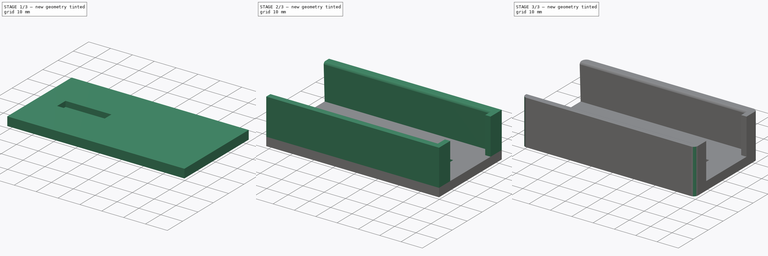
[diagram: build sequence overview — one tinted view per stage of 3, left to right]
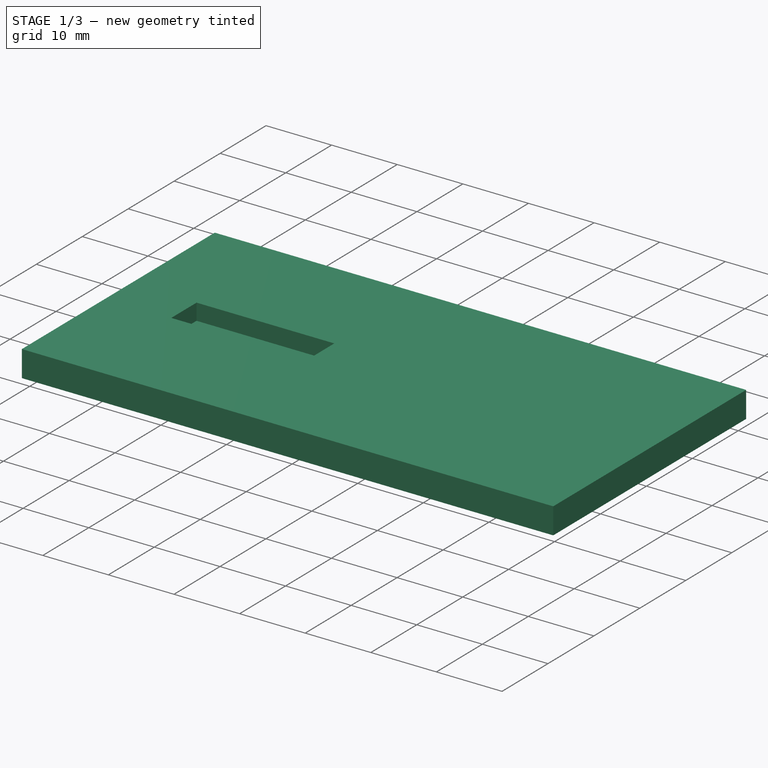
[diagram: stage 1 of 3 — iso view after this stage's code; geometry added in this stage tinted green]
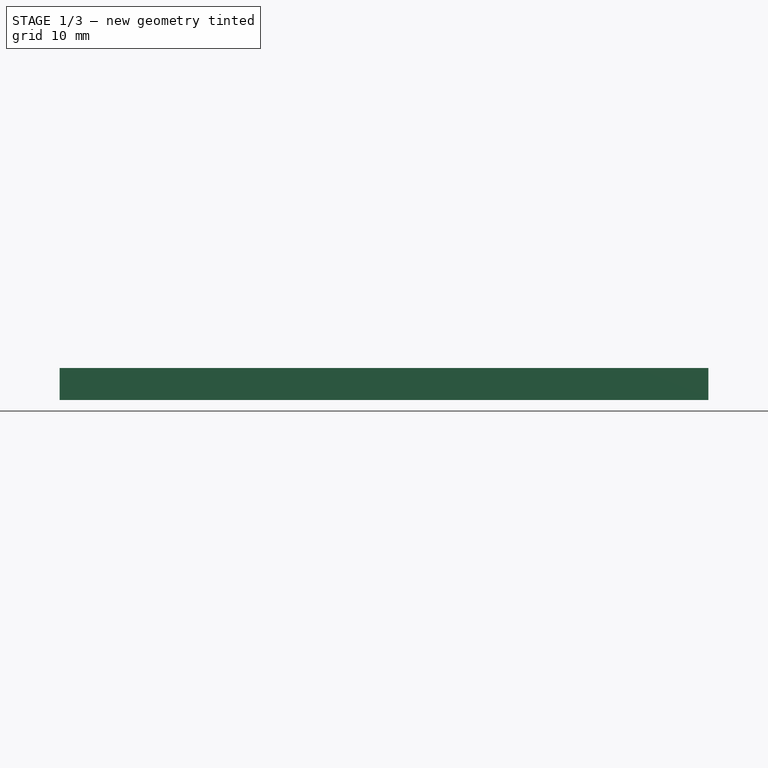
[diagram: stage 1 of 3 — front view after this stage's code; geometry added in this stage tinted green]
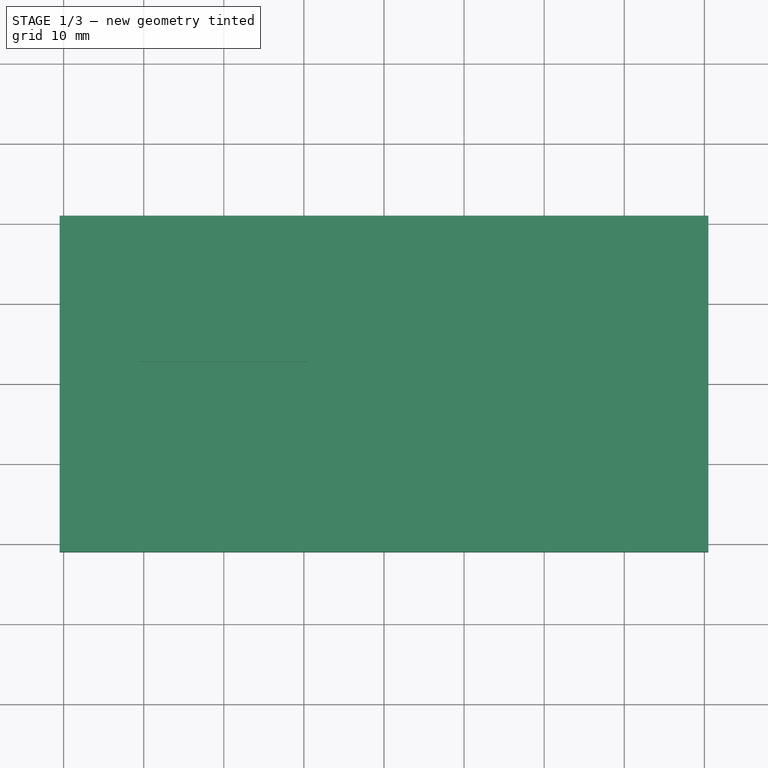
[diagram: stage 1 of 3 — top view after this stage's code; geometry added in this stage tinted green]
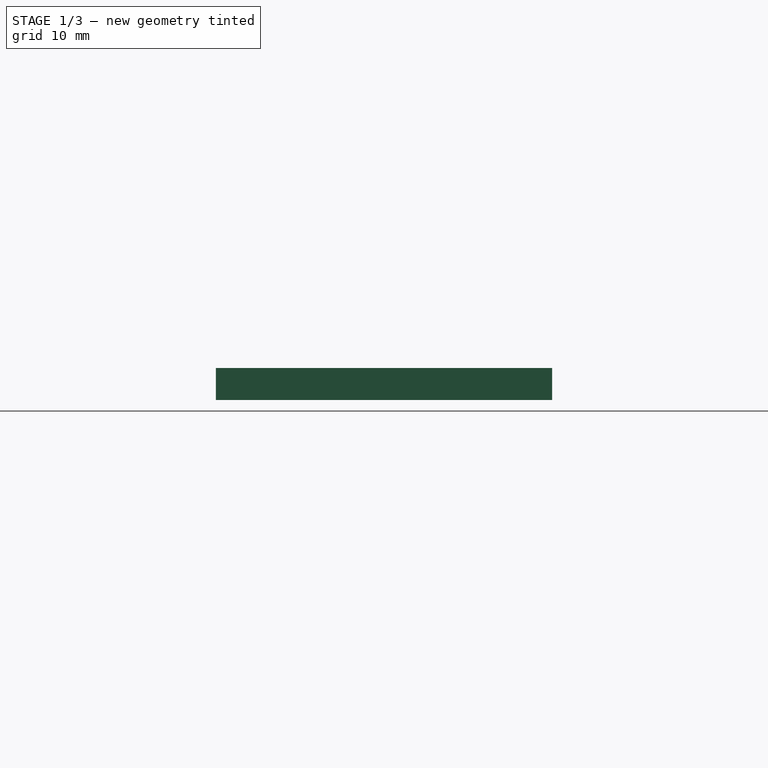
[diagram: stage 1 of 3 — right view after this stage's code; geometry added in this stage tinted green]
FCSTD DOCUMENT  (FreeCAD 0.19R24291 (Git))
Label: MiBoxerLEDControllerHolder
License: All rights reserved
LicenseURL: http://en.wikipedia.org/wiki/All_rights_reserved
objects: Sketcher::SketchObject×4, PartDesign::Pad×3, PartDesign::Fillet×2, PartDesign::Pocket×1, PartDesign::Mirrored×1, PartDesign::Body×1
note: 18 computed .brp shape members not serialized (recipe doc carries the construction recipe); baked Part::Feature solids carry a one-line shape summary decoded from their .brp

FEATURE [Sketcher::SketchObject] Sketch
  FullyConstrained = true
  MapMode = 5
  Support = -> [XY_Plane]
  expr: Constraints[23] = Constraints[20]
  expr: Constraints[22] = Constraints[20]
  expr: Constraints[21] = Constraints[20]
  expr: Constraints[11] = Constraints[9] / 2
  expr: Constraints[10] = -Constraints[8] / 2
  sketch-geometry (8):
    g0: LineSegment StartX=-37.5 StartY=-18 StartZ=0 EndX=37.5 EndY=-18 EndZ=0
    g1: LineSegment StartX=37.5 StartY=-18 StartZ=0 EndX=37.5 EndY=18 EndZ=0
    g2: LineSegment StartX=37.5 StartY=18 StartZ=0 EndX=-37.5 EndY=18 EndZ=0
    g3: LineSegment StartX=-37.5 StartY=18 StartZ=0 EndX=-37.5 EndY=-18 EndZ=0
    g4: LineSegment StartX=-40.5 StartY=-21 StartZ=0 EndX=40.5 EndY=-21 EndZ=0
    g5: LineSegment StartX=40.5 StartY=-21 StartZ=0 EndX=40.5 EndY=21 EndZ=0
    g6: LineSegment StartX=40.5 StartY=21 StartZ=0 EndX=-40.5 EndY=21 EndZ=0
    g7: LineSegment StartX=-40.5 StartY=21 StartZ=0 EndX=-40.5 EndY=-21 EndZ=0
  constraints (24):
    c: Coincident(g0,g1)
    c: Coincident(g1,g2)
    c: Coincident(g2,g3)
    c: Coincident(g3,g0)
    c: Horizontal(g0)
    c: Horizontal(g2)
    c: Vertical(g1)
    c: Vertical(g3)
    c: Distance(g2) = 75
    c: Distance(g1) = 36
    c: DistanceX(g-2,g2) = -37.5
    c: DistanceY(g-1,g1) = 18
    c: Coincident(g4,g5)
    c: Coincident(g5,g6)
    c: Coincident(g6,g7)
    c: Coincident(g7,g4)
    c: Horizontal(g4)
    c: Horizontal(g6)
    c: Vertical(g5)
    c: Vertical(g7)
    c: Distance(g2,g6) = 3
    c: Distance(g0,g7) = 3
    c: Distance(g0,g4) = 3
    c: Distance(g0,g5) = 3
FEATURE [PartDesign::Pad] Pad
  Direction = (1,1,1)
  Length = 4
  Length2 = 100
  Profile = -> Sketch
  Type = 0
FEATURE [Sketcher::SketchObject] Sketch001
  ExternalGeometry = -> [Pad]
  FullyConstrained = true
  MapMode = 5
  Placement = pos=(0,0,4) rot=(0,0,1;0rad)
  Support = -> [Pad]
  expr: Constraints[10] = Constraints[9] / 2
  sketch-geometry (4):
    g0: LineSegment StartX=-30.5 StartY=2.75 StartZ=0 EndX=-9.5 EndY=2.75 EndZ=0
    g1: LineSegment StartX=-9.5 StartY=2.75 StartZ=0 EndX=-9.5 EndY=-2.75 EndZ=0
    g2: LineSegment StartX=-9.5 StartY=-2.75 StartZ=0 EndX=-30.5 EndY=-2.75 EndZ=0
    g3: LineSegment StartX=-30.5 StartY=-2.75 StartZ=0 EndX=-30.5 EndY=2.75 EndZ=0
  constraints (12):
    c: Coincident(g0,g1)
    c: Coincident(g1,g2)
    c: Coincident(g2,g3)
    c: Coincident(g3,g0)
    c: Horizontal(g0)
    c: Horizontal(g2)
    c: Vertical(g1)
    c: Vertical(g3)
    c: Distance(g2) = 21
    c: Distance(g1) = 5.5
    c: DistanceY(g-1,g0) = 2.75
    c: Distance(g0,g-4) = 10
FEATURE [PartDesign::Pocket] Pocket
  BaseFeature = -> Pad
  Length = 2.5
  Length2 = 100
  Profile = -> Sketch001
  Type = 0
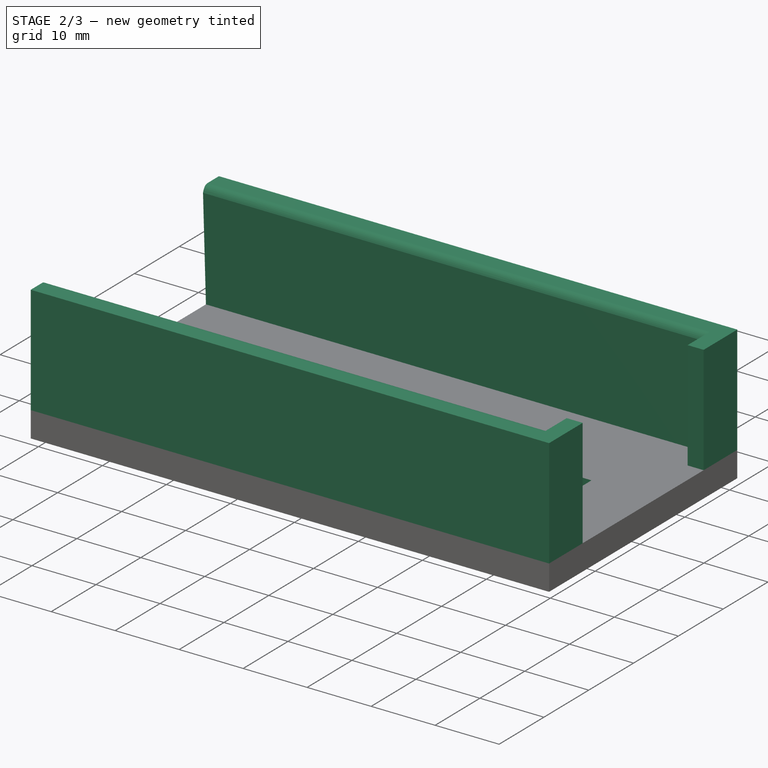
[diagram: stage 2 of 3 — iso view after this stage's code; geometry added in this stage tinted green]
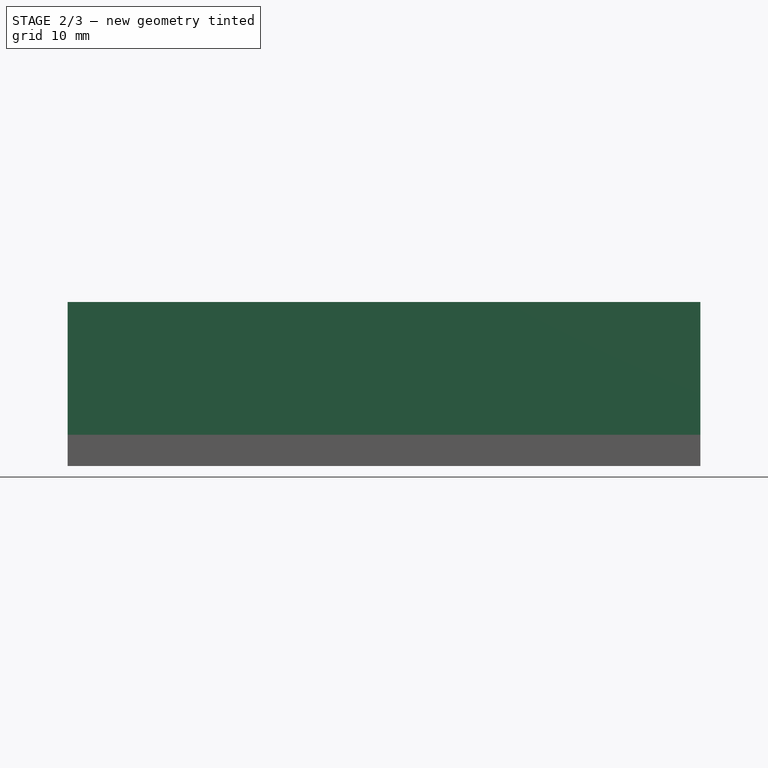
[diagram: stage 2 of 3 — front view after this stage's code; geometry added in this stage tinted green]
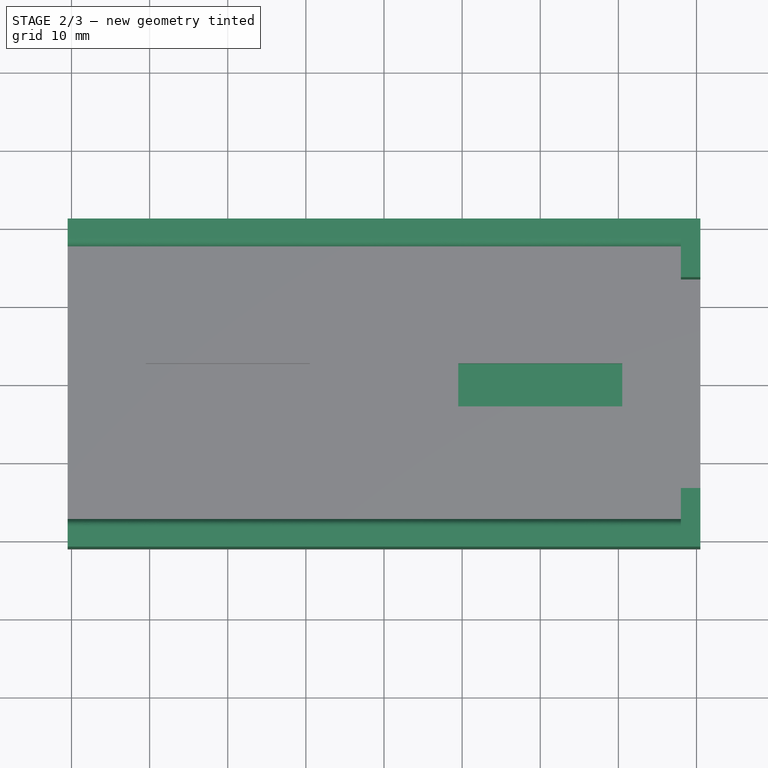
[diagram: stage 2 of 3 — top view after this stage's code; geometry added in this stage tinted green]
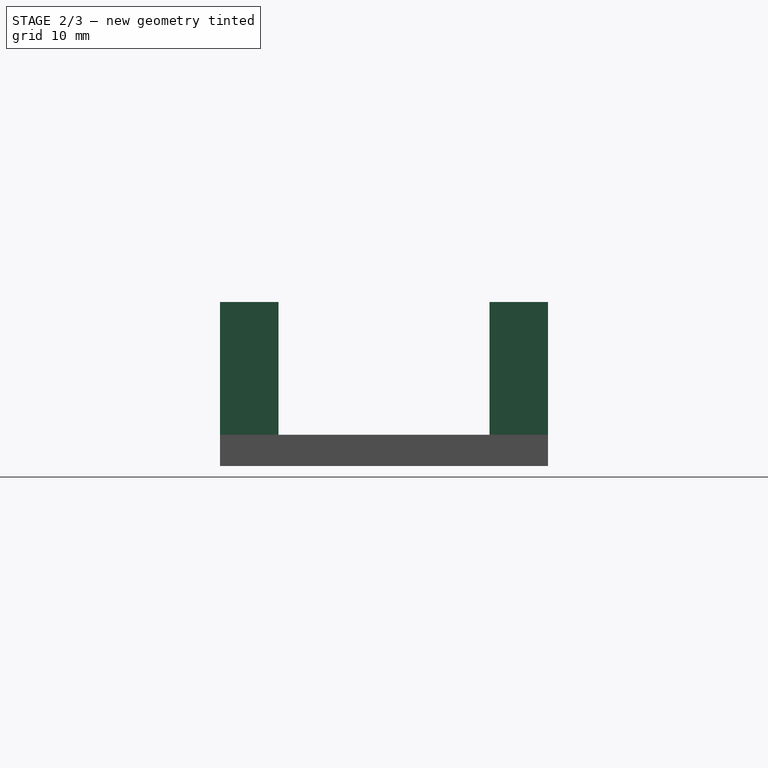
[diagram: stage 2 of 3 — right view after this stage's code; geometry added in this stage tinted green]
FEATURE [PartDesign::Mirrored] Mirrored
  BaseFeature = -> Pocket
  MirrorPlane = -> Sketch001 [V_Axis]
  Originals = -> [Pocket]
FEATURE [Sketcher::SketchObject] Sketch002
  ExternalGeometry = -> [Mirrored]
  FullyConstrained = true
  MapMode = 5
  Placement = pos=(0,0,4) rot=(0,0,1;0rad)
  Support = -> [Mirrored]
  expr: Constraints[42] = Constraints[31]
  expr: Constraints[41] = Constraints[10]
  expr: Constraints[30] = Constraints[10]
  expr: Constraints[21] = Constraints[10]
  sketch-geometry (16):
    g0: LineSegment StartX=-40.5 StartY=21 StartZ=0 EndX=40.5 EndY=21 EndZ=0
    g1: LineSegment StartX=40.5 StartY=21 StartZ=0 EndX=40.5 EndY=18.5 EndZ=0
    g2: LineSegment StartX=40.5 StartY=18.5 StartZ=0 EndX=-40.5 EndY=18.5 EndZ=0
    g3: LineSegment StartX=-40.5 StartY=18.5 StartZ=0 EndX=-40.5 EndY=21 EndZ=0
    g4: LineSegment StartX=-40.5 StartY=-21 StartZ=0 EndX=40.5 EndY=-21 EndZ=0
    g5: LineSegment StartX=40.5 StartY=-21 StartZ=0 EndX=40.5 EndY=-18.5 EndZ=0
    g6: LineSegment StartX=40.5 StartY=-18.5 StartZ=0 EndX=-40.5 EndY=-18.5 EndZ=0
    g7: LineSegment StartX=-40.5 StartY=-18.5 StartZ=0 EndX=-40.5 EndY=-21 EndZ=0
    g8: LineSegment StartX=38 StartY=18.5 StartZ=0 EndX=38 EndY=13.5 EndZ=0
    g9: LineSegment StartX=38 StartY=13.5 StartZ=0 EndX=40.5 EndY=13.5 EndZ=0
    g10: LineSegment StartX=40.5 StartY=13.5 StartZ=0 EndX=40.5 EndY=18.5 EndZ=0
    g11: LineSegment StartX=-40.5 StartY=18.5 StartZ=0 EndX=38 EndY=18.5 EndZ=0
    g12: LineSegment StartX=38 StartY=-18.5 StartZ=0 EndX=38 EndY=-13.5 EndZ=0
    g13: LineSegment StartX=38 StartY=-13.5 StartZ=0 EndX=40.5 EndY=-13.5 EndZ=0
    g14: LineSegment StartX=40.5 StartY=-13.5 StartZ=0 EndX=40.5 EndY=-18.5 EndZ=0
    g15: LineSegment StartX=-40.5 StartY=-18.5 StartZ=0 EndX=38 EndY=-18.5 EndZ=0
  constraints (45):
    c: Coincident(g0,g1)
    c: Coincident(g1,g2)
    c: Coincident(g2,g3)
    c: Coincident(g3,g0)
    c: Horizontal(g0)
    c: Horizontal(g2)
    c: Vertical(g1)
    c: Vertical(g3)
    c: Coincident(g0,g-4)
    c: PointOnObject(g1,g-6)
    c: Distance(g1) = 2.5
    c: Coincident(g4,g5)
    c: Coincident(g5,g6)
    c: Coincident(g6,g7)
    c: Coincident(g7,g4)
    c: Horizontal(g4)
    c: Horizontal(g6)
    c: Vertical(g5)
    c: Vertical(g7)
    c: Coincident(g4,g-5)
    c: PointOnObject(g5,g-6)
    c: Distance(g5) = 2.5
    c: Vertical(g8)
    c: Coincident(g9,g8)
    c: PointOnObject(g9,g-6)
    c: PointOnObject(g10,g9)
    c: Coincident(g10,g1)
    c: Vertical(g10)
    c: PointOnObject(g8,g2)
    c: Horizontal(g9)
    c: Distance(g9) = 2.5
    c: Distance(g10) = 5
    c: Coincident(g11,g3)
    c: Coincident(g11,g8)
    c: PointOnObject(g12,g6)
    c: Vertical(g12)
    c: Coincident(g13,g12)
    c: PointOnObject(g13,g-6)
    c: Horizontal(g13)
    c: Coincident(g14,g13)
    c: Coincident(g14,g5)
    c: Distance(g13) = 2.5
    c: Distance(g14) = 5
    c: Coincident(g15,g7)
    c: Coincident(g15,g12)
FEATURE [PartDesign::Pad] Pad001
  BaseFeature = -> Mirrored
  Direction = (1,1,1)
  Length = 17
  Length2 = 100
  Profile = -> Sketch002
  Type = 0
FEATURE [Sketcher::SketchObject] Sketch004
  ExternalGeometry = -> [Pad001]
  FullyConstrained = true
  MapMode = 5
  Placement = pos=(-40.5,0,0) rot=(0.57735,-0.57735,-0.57735;2.0944rad)
  expr: Constraints[57] = Constraints[43]
  sketch-geometry (28):
    g0: LineSegment StartX=-17.45 StartY=20 StartZ=0 EndX=-18.5 EndY=20 EndZ=0
    g1: LineSegment StartX=-18.5 StartY=20 StartZ=0 EndX=-18.5 EndY=4 EndZ=0
    g2: LineSegment StartX=17.45 StartY=20 StartZ=0 EndX=18.5 EndY=20 EndZ=0
    g3: LineSegment StartX=18.5 StartY=20 StartZ=0 EndX=18.5 EndY=4 EndZ=0
    g4: LineSegment StartX=-17.45 StartY=20 StartZ=0 EndX=17.45 EndY=20 EndZ=0
    g5: LineSegment StartX=-17.45 StartY=20 StartZ=0 EndX=-18.1 EndY=4 EndZ=0
    g6: LineSegment StartX=-18.1 StartY=4 StartZ=0 EndX=-18.5 EndY=4 EndZ=0
    g7: LineSegment StartX=17.45 StartY=20 StartZ=0 EndX=18.1 EndY=4 EndZ=0
    g8: LineSegment StartX=18.1 StartY=4 StartZ=0 EndX=18.5 EndY=4 EndZ=0
    g9: LineSegment StartX=-18.5 StartY=20 StartZ=0 EndX=-18.5 EndY=4 EndZ=0
    g10: LineSegment StartX=18.5 StartY=20 StartZ=0 EndX=18.5 EndY=4 EndZ=0
    g11: LineSegment StartX=-18.5 StartY=20 StartZ=0 EndX=-17.45 EndY=20 EndZ=0
    g12: Circle CenterX=-17.45 CenterY=20 CenterZ=0 NormalX=0 NormalY=0 NormalZ=1 AngleXU=0 Radius=1
    g13: Circle CenterX=-17.7179 CenterY=21 CenterZ=0 NormalX=0 NormalY=0 NormalZ=1 AngleXU=0 Radius=1
    g14: Circle CenterX=-18.5 CenterY=21 CenterZ=0 NormalX=0 NormalY=0 NormalZ=1 AngleXU=0 Radius=1
    g15: BSplineCurve PolesCount=3 KnotsCount=2 Degree=2 IsPeriodic=0
    g16: GeomPoint X=-17.45 Y=20 Z=0
    g17: GeomPoint X=-18.5 Y=21 Z=0
    g18: LineSegment StartX=-17.45 StartY=20 StartZ=0 EndX=-17.7179 EndY=21 EndZ=0
    g19: LineSegment StartX=-18.5 StartY=21 StartZ=0 EndX=-18.5 EndY=20 EndZ=0
    g20: Circle CenterX=17.45 CenterY=20 CenterZ=0 NormalX=0 NormalY=0 NormalZ=1 AngleXU=0 Radius=1
    g21: Circle CenterX=17.7179 CenterY=21 CenterZ=0 NormalX=0 NormalY=0 NormalZ=1 AngleXU=0 Radius=1
    g22: Circle CenterX=18.5 CenterY=21 CenterZ=0 NormalX=0 NormalY=0 NormalZ=1 AngleXU=0 Radius=1
    g23: BSplineCurve PolesCount=3 KnotsCount=2 Degree=2 IsPeriodic=0
    g24: GeomPoint X=17.45 Y=20 Z=0
    g25: GeomPoint X=18.5 Y=21 Z=0
    g26: LineSegment StartX=17.45 StartY=20 StartZ=0 EndX=17.7179 EndY=21 EndZ=0
    g27: LineSegment StartX=18.5 StartY=21 StartZ=0 EndX=18.5 EndY=20 EndZ=0
  constraints (62):
    c: Horizontal(g0)
    c: Coincident(g1,g0)
    c: Horizontal(g2)
    c: Coincident(g3,g2)
    c: Equal(g0,g2)
    c: DistanceX(g0,g2) = 34.9
    c: Distance(g1) = 16
    c: Horizontal(g4)
    c: Coincident(g5,g0)
    c: Coincident(g6,g5)
    c: Coincident(g6,g1)
    c: Coincident(g7,g2)
    c: Coincident(g8,g7)
    c: Coincident(g8,g3)
    c: Equal(g6,g8)
    c: Distance(g7,g5) = 36.2
    c: Coincident(g2,g4)
    c: Coincident(g4,g5)
    c: Coincident(g9,g1)
    c: Coincident(g9,g1)
    c: Coincident(g10,g2)
    c: Coincident(g10,g3)
    c: Coincident(g11,g1)
    c: Coincident(g11,g5)
    c: Horizontal(g6)
    c: Horizontal(g8)
    c: Coincident(g3,g-5)
    c: Coincident(g1,g-4)
    c: PointOnObject(g1,g-4)
    c: PointOnObject(g2,g-5)
    c: Coincident(g15,g5)
    c: Weight(g12) = 1
    c: Equal(g12,g13)
    c: Equal(g12,g14)
    c: InternalAlignment(g12,g15)
    c: InternalAlignment(g13,g15)
    c: InternalAlignment(g14,g15)
    c: InternalAlignment(g16,g15)
    c: InternalAlignment(g17,g15)
    c: Coincident(g15,g-4)
    c: Coincident(g18,g5)
    c: Coincident(g18,g13)
    c: PointOnObject(g13,g-6)
    c: Angle(g18,g11) = 1.309
    c: Coincident(g19,g15)
    c: Coincident(g19,g1)
    c: Coincident(g23,g7)
    c: Weight(g20) = 1
    c: Equal(g20,g21)
    c: Equal(g20,g22)
    c: Coincident(g23,g-5)
    c: InternalAlignment(g20,g23)
    c: InternalAlignment(g21,g23)
    c: InternalAlignment(g22,g23)
    c: InternalAlignment(g24,g23)
    c: InternalAlignment(g25,g23)
    c: PointOnObject(g21,g-7)
    c: Coincident(g26,g7) = 75
    c: Coincident(g26,g21)
    c: Angle(g2,g26) = 1.309
    c: Coincident(g27,g23)
    c: Coincident(g27,g3)
FEATURE [PartDesign::Pad] Pad002
  BaseFeature = -> Pad001
  Direction = (1,1,1)
  Length = 10
  Length2 = 100
  Profile = -> Sketch004
  Reversed = true
  Type = 3
  UpToFace = -> Pad001 [Face18]
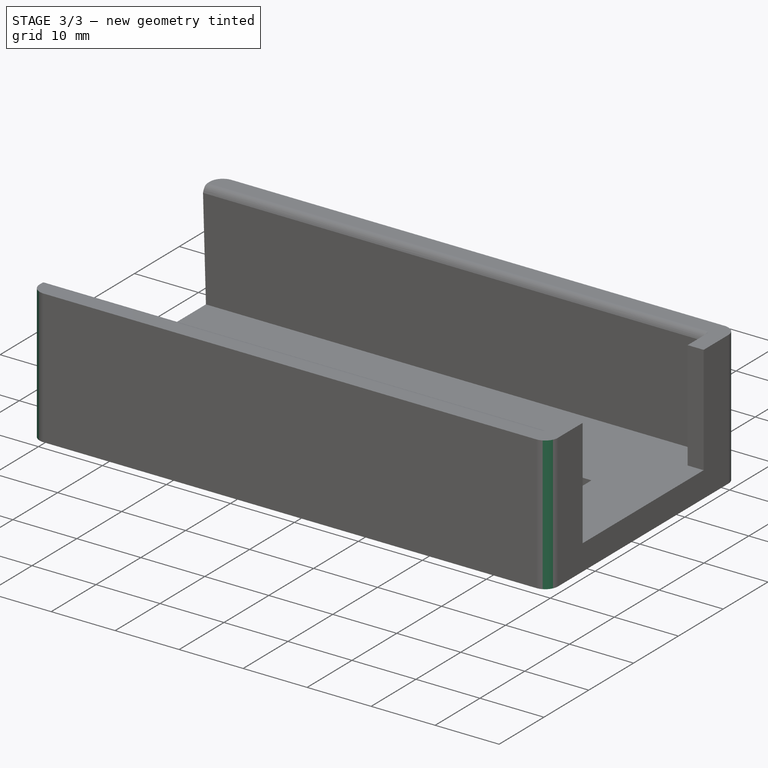
[diagram: stage 3 of 3 — iso view after this stage's code; geometry added in this stage tinted green]
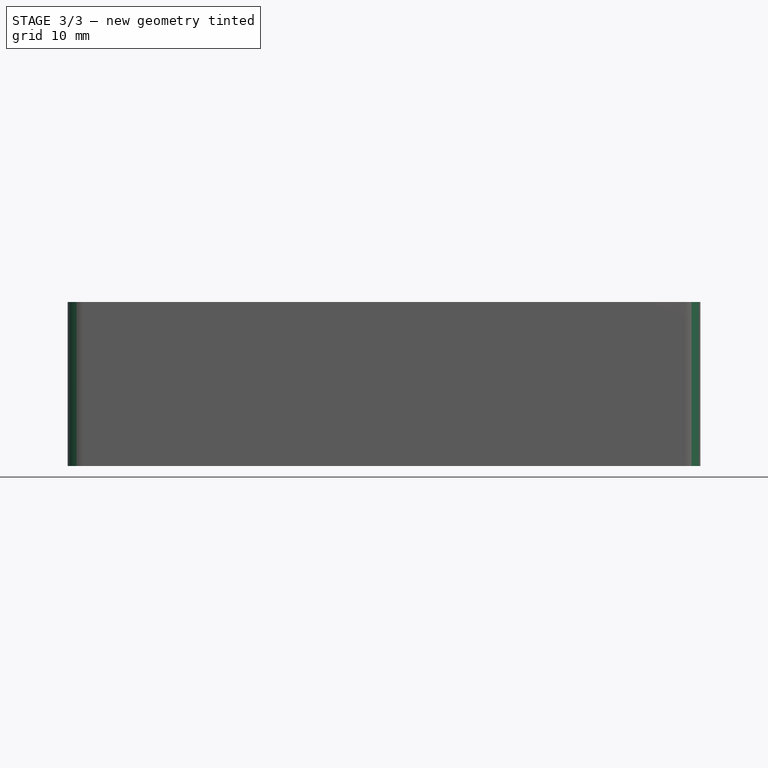
[diagram: stage 3 of 3 — front view after this stage's code; geometry added in this stage tinted green]
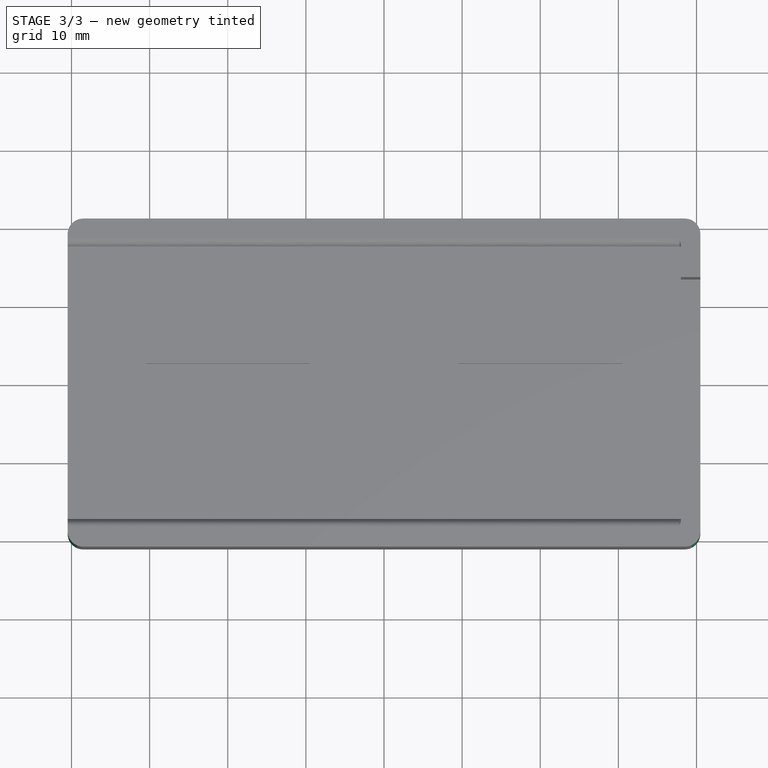
[diagram: stage 3 of 3 — top view after this stage's code; geometry added in this stage tinted green]
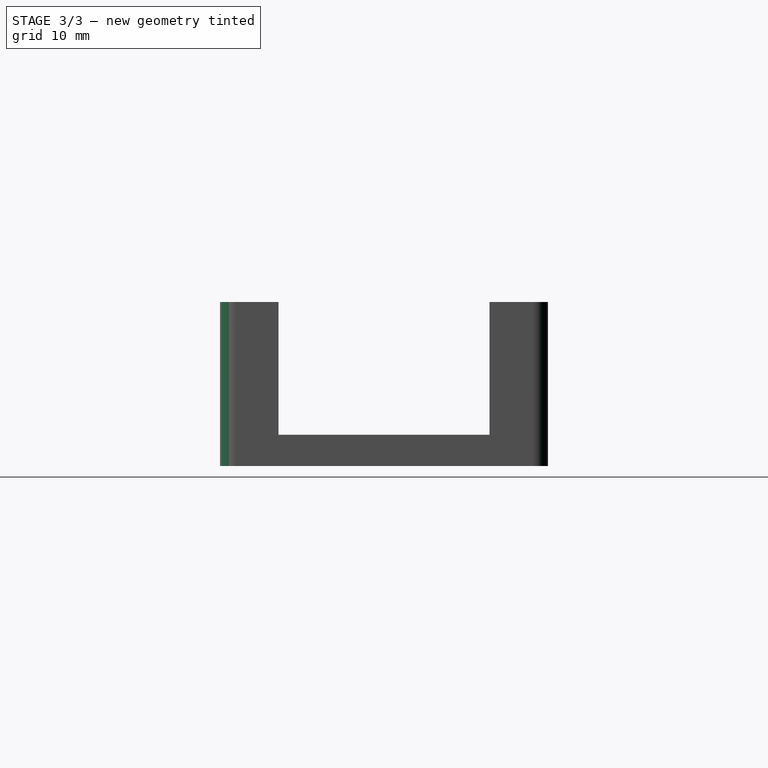
[diagram: stage 3 of 3 — right view after this stage's code; geometry added in this stage tinted green]
FEATURE [PartDesign::Fillet] Fillet
  Base = -> Pad002 [Edge26,Edge5,Edge20,Edge1,Edge21,Edge2,Edge56,Edge12]
  BaseFeature = -> Pad002
  Radius = 2
  SupportTransform = false
FEATURE [PartDesign::Fillet] Fillet001
  Base = -> Fillet [Edge89,Edge82]
  BaseFeature = -> Fillet
  Radius = 0.3
  SupportTransform = false
FEATURE [PartDesign::Body] Body  label="MiboxerSingleLed"
  Group = -> [Sketch,Pad,Sketch001,Pocket,Mirrored,Sketch002,Pad001,Sketch004,Pad002,Fillet,Fillet001]
  Origin = -> Origin
  Tip = -> Fillet001
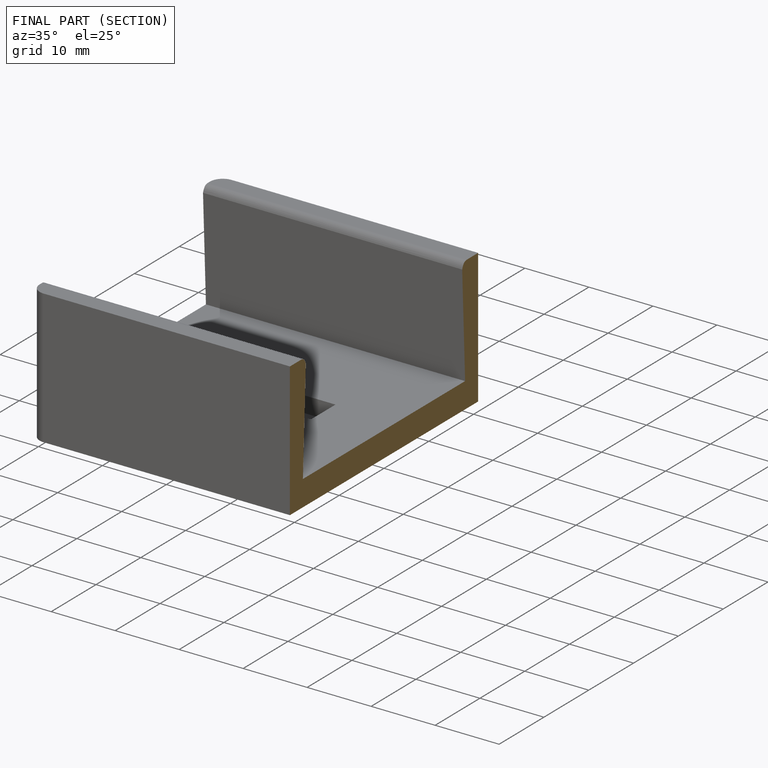
[diagram: finished part — half-section view (interior)]
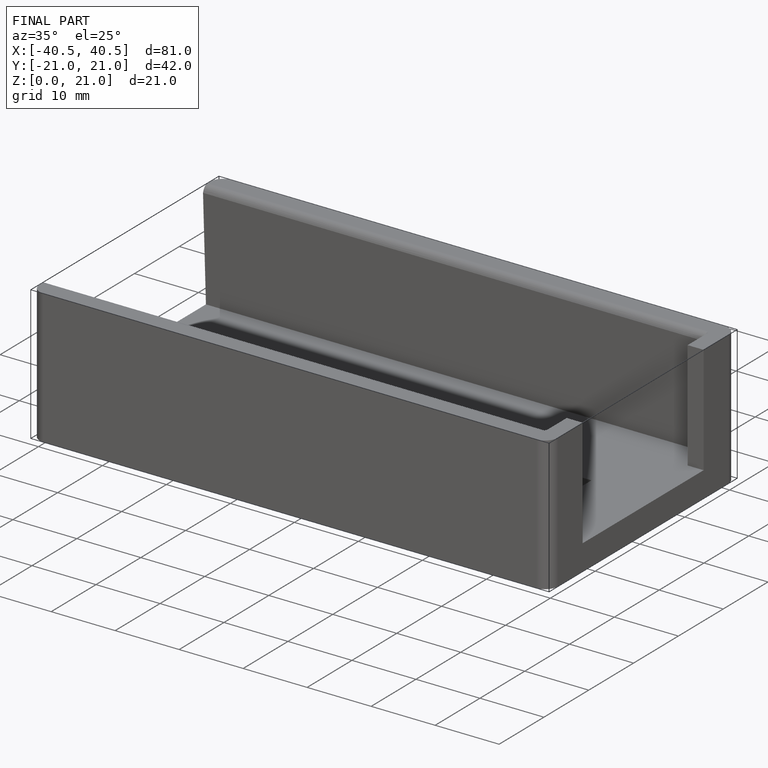
[diagram: finished part — iso view with bounding-box wireframe]
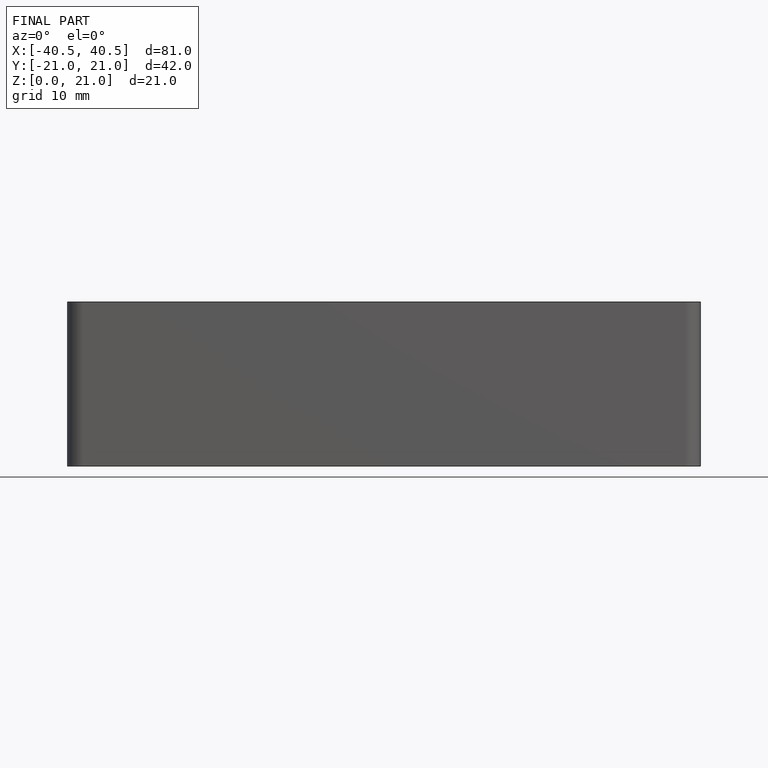
[diagram: finished part — front view with bounding-box wireframe]
